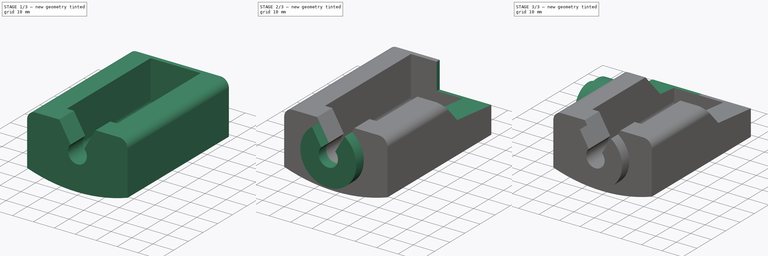
[diagram: build sequence overview — one tinted view per stage of 3, left to right]
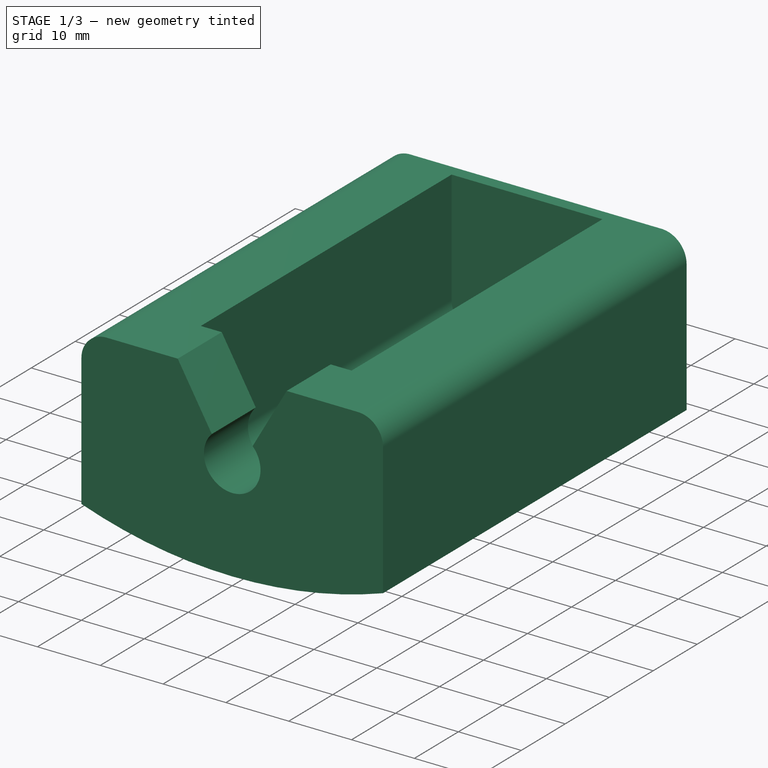
[diagram: stage 1 of 3 — iso view after this stage's code; geometry added in this stage tinted green]
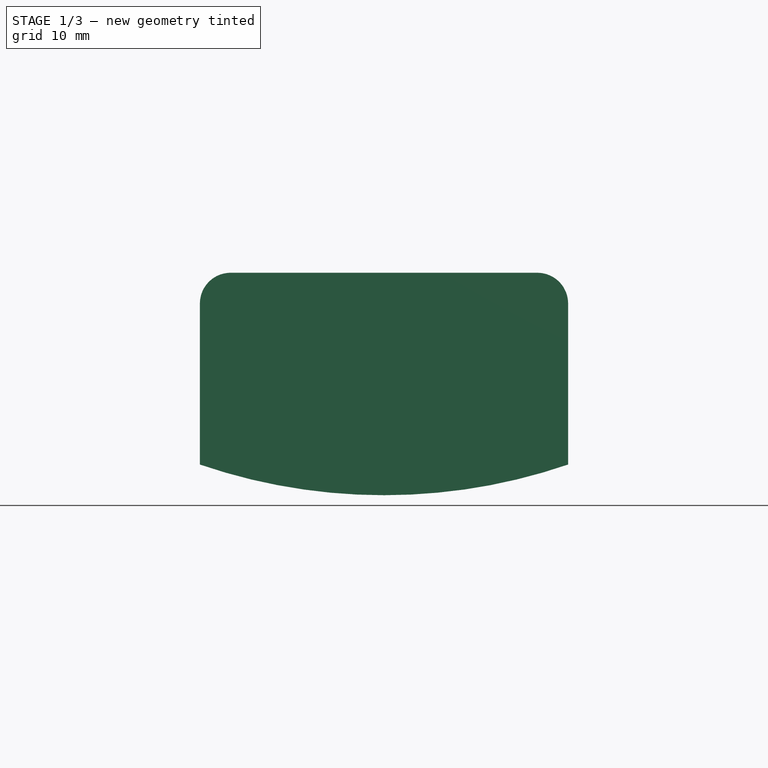
[diagram: stage 1 of 3 — front view after this stage's code; geometry added in this stage tinted green]
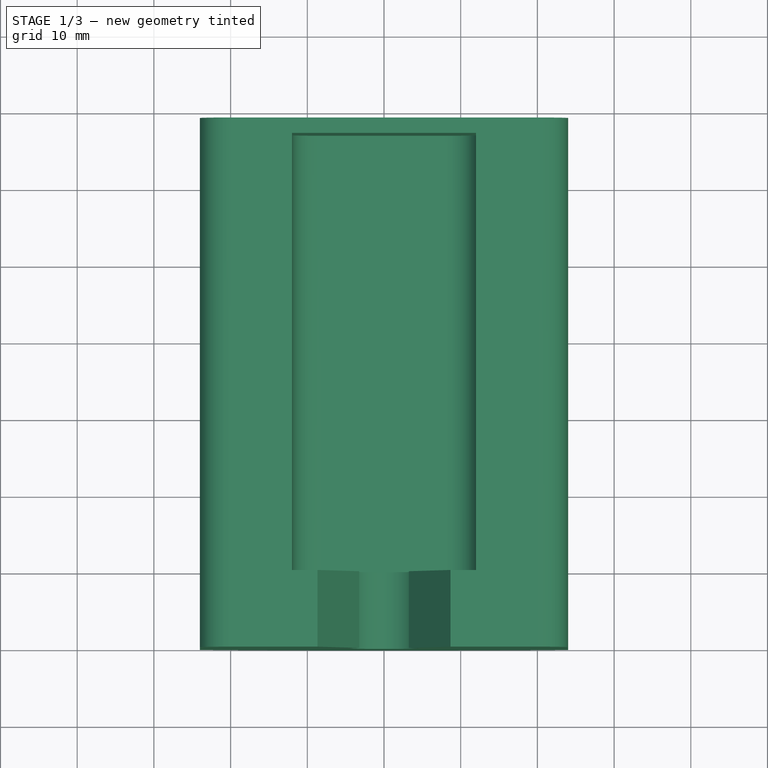
[diagram: stage 1 of 3 — top view after this stage's code; geometry added in this stage tinted green]
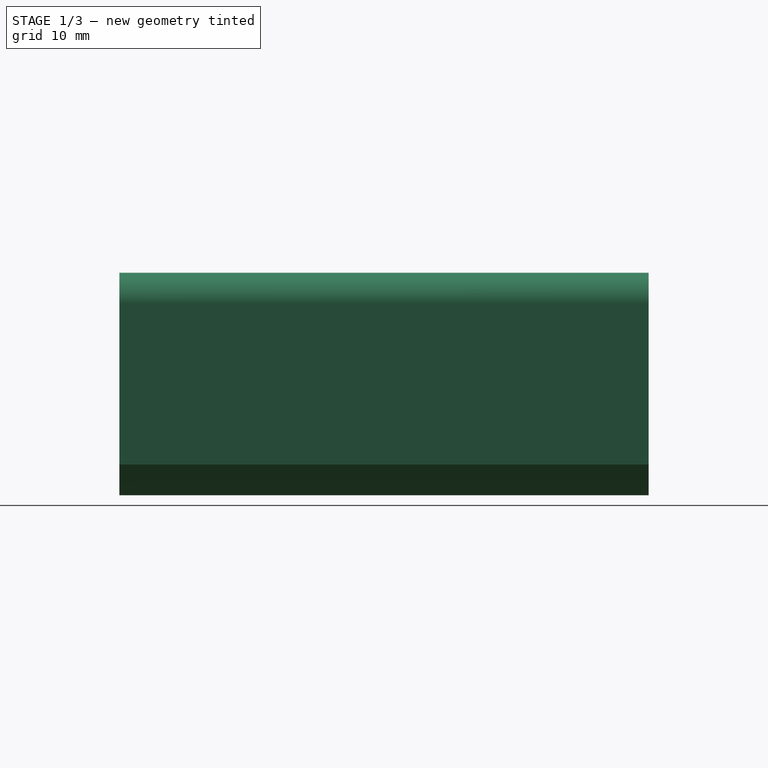
[diagram: stage 1 of 3 — right view after this stage's code; geometry added in this stage tinted green]
FCSTD DOCUMENT  (FreeCAD 0.20R28730 (Git))
Label: Tool Holder
License: All rights reserved
LicenseURL: http://en.wikipedia.org/wiki/All_rights_reserved
objects: Sketcher::SketchObject×8, PartDesign::Pad×4, PartDesign::Pocket×4, PartDesign::CoordinateSystem×1, PartDesign::Body×1
note: 26 computed .brp shape members not serialized (recipe doc carries the construction recipe); baked Part::Feature solids carry a one-line shape summary decoded from their .brp

FEATURE [Sketcher::SketchObject] Sketch
  FullyConstrained = true
  MapMode = 5
  Placement = pos=(0,0,0) rot=(1,0,0;1.5708rad)
  Support = -> [XZ_Plane]
  sketch-geometry (11):
    g0: LineSegment StartX=-24 StartY=-12.5 StartZ=0 EndX=-24 EndY=8.5 EndZ=0
    g1: LineSegment StartX=-20 StartY=12.5 StartZ=0 EndX=20 EndY=12.5 EndZ=0
    g2: LineSegment StartX=24 StartY=8.5 StartZ=0 EndX=24 EndY=-12.5 EndZ=0
    g3: LineSegment StartX=24 StartY=-12.5 StartZ=0 EndX=-24 EndY=-12.5 EndZ=0
    g4: GeomPoint X=0 Y=0 Z=0
    g5: ArcOfCircle CenterX=1.57e-14 CenterY=57.5 CenterZ=0 NormalX=0 NormalY=0 NormalZ=1 AngleXU=0 Radius=74 StartAngle=4.38209 EndAngle=5.04269
    g6: GeomPoint X=0 Y=-16.5 Z=0
    g7: ArcOfCircle CenterX=-20 CenterY=8.5 CenterZ=0 NormalX=0 NormalY=0 NormalZ=1 AngleXU=0 Radius=4 StartAngle=1.5708 EndAngle=3.14159
    g8: GeomPoint X=-24 Y=12.5 Z=0
    g9: ArcOfCircle CenterX=20 CenterY=8.5 CenterZ=0 NormalX=0 NormalY=0 NormalZ=1 AngleXU=0 Radius=4 StartAngle=0 EndAngle=1.5708
    g10: GeomPoint X=24 Y=12.5 Z=0
  constraints (25):
    c: Coincident(g2,g3)
    c: Coincident(g3,g0)
    c: Horizontal(g1)
    c: Horizontal(g3)
    c: Vertical(g0)
    c: Vertical(g2)
    c: Symmetric(g10,g0,g4)
    c: Coincident(g4,g-1)
    c: Coincident(g5,g0)
    c: Coincident(g5,g2)
    c: DistanceX(g8,g10) = 48
    c: Distance(g0,g8) = 25
    c: PointOnObject(g6,g5)
    c: Vertical(g6,g-1)
    c: DistanceY(g6,g8) = 29
    c: PointOnObject(g8,g0)
    c: PointOnObject(g8,g1)
    c: Tangent(g0,g7) = 1.5708
    c: Tangent(g1,g7) = 1.5708
    c: PointOnObject(g10,g1)
    c: PointOnObject(g10,g2)
    c: Tangent(g1,g9) = 1.5708
    c: Tangent(g2,g9) = 1.5708
    c: Radius(g9) = 4
    c: Equal(g9,g7)
FEATURE [PartDesign::Pad] Pad
  Direction = (0,-1,-2e-16)
  Length = 69
  Length2 = 100
  Placement = pos=(0,0,0) rot=(1,0,0;1.5708rad)
  Profile = -> Sketch
  ReferenceAxis = -> Sketch [N_Axis]
  Reversed = true
  Type = 0
FEATURE [Sketcher::SketchObject] Sketch001
  AttachmentOffset = pos=(0,0,-10) rot=(0,0,1;0rad)
  ExternalGeometry = -> [Pad]
  FullyConstrained = true
  MapMode = 5
  Placement = pos=(0,10,2.2e-15) rot=(1,0,0;1.5708rad)
  Support = -> [XZ_Plane]
  sketch-geometry (9):
    g0: LineSegment StartX=-12 StartY=-5.5 StartZ=0 EndX=-12 EndY=12.5 EndZ=0
    g1: LineSegment StartX=-12 StartY=12.5 StartZ=0 EndX=12 EndY=12.5 EndZ=0
    g2: LineSegment StartX=12 StartY=12.5 StartZ=0 EndX=12 EndY=-5.5 EndZ=0
    g3: LineSegment StartX=8 StartY=-9.5 StartZ=0 EndX=-8 EndY=-9.5 EndZ=0
    g4: GeomPoint X=0 Y=1.5 Z=0
    g5: ArcOfCircle CenterX=-8 CenterY=-5.5 CenterZ=0 NormalX=0 NormalY=0 NormalZ=1 AngleXU=0 Radius=4 StartAngle=3.14159 EndAngle=4.71239
    g6: GeomPoint X=-12 Y=-9.5 Z=0
    g7: ArcOfCircle CenterX=8 CenterY=-5.5 CenterZ=0 NormalX=0 NormalY=0 NormalZ=1 AngleXU=0 Radius=4 StartAngle=4.71239 EndAngle=6.28319
    g8: GeomPoint X=12 Y=-9.5 Z=0
  constraints (21):
    c: Coincident(g0,g1)
    c: Coincident(g1,g2)
    c: Horizontal(g1)
    c: Horizontal(g3)
    c: Vertical(g0)
    c: Vertical(g2)
    c: Symmetric(g1,g6,g4)
    c: PointOnObject(g4,g-2)
    c: DistanceX(g-3,g0) = 12
    c: PointOnObject(g0,g-4)
    c: DistanceY(g6,g0) = 22
    c: PointOnObject(g6,g0)
    c: PointOnObject(g6,g3)
    c: Tangent(g0,g5) = 1.5708
    c: Tangent(g3,g5) = 1.5708
    c: PointOnObject(g8,g2)
    c: PointOnObject(g8,g3)
    c: Tangent(g2,g7) = 1.5708
    c: Tangent(g3,g7) = 1.5708
    c: Equal(g7,g5)
    c: Radius(g5) = 4
FEATURE [PartDesign::Pocket] Pocket
  BaseFeature = -> Pad
  Direction = (0,1,2e-16)
  Length = 57
  Length2 = 100
  Placement = pos=(0,0,0) rot=(1,0,0;1.5708rad)
  Profile = -> Sketch001
  Type = 0
FEATURE [Sketcher::SketchObject] Sketch002
  ExternalGeometry = -> [Pocket]
  FullyConstrained = true
  MapMode = 5
  Placement = pos=(0,0,0) rot=(1,0,0;1.5708rad)
  Support = -> [XZ_Plane]
  sketch-geometry (4):
    g0: ArcOfCircle CenterX=0 CenterY=0 CenterZ=0 NormalX=0 NormalY=0 NormalZ=1 AngleXU=0 Radius=4.5 StartAngle=2.37781 EndAngle=7.04697
    g1: LineSegment StartX=-3.25 StartY=3.11247 StartZ=0 EndX=-8.66989 EndY=12.5 EndZ=0
    g2: LineSegment StartX=-8.66989 StartY=12.5 StartZ=0 EndX=8.66989 EndY=12.5 EndZ=0
    g3: LineSegment StartX=8.66989 StartY=12.5 StartZ=0 EndX=3.25 EndY=3.11247 EndZ=0
  constraints (12):
    c: Coincident(g0,g-1)
    c: Coincident(g0,g1)
    c: Coincident(g1,g2)
    c: Horizontal(g2)
    c: Coincident(g2,g3)
    c: Coincident(g3,g0)
    c: Equal(g3,g1)
    c: Horizontal(g0,g0)
    c: PointOnObject(g1,g-3)
    c: Radius(g0) = 4.5
    c: DistanceX(g0,g0) = 6.5
    c: Angle(g3,g1) = 1.0472
FEATURE [PartDesign::Pocket] Pocket001
  BaseFeature = -> Pocket
  Direction = (0,1,2e-16)
  Length = 10
  Length2 = 100
  Placement = pos=(0,0,0) rot=(1,0,0;1.5708rad)
  Profile = -> Sketch002
  Type = 0
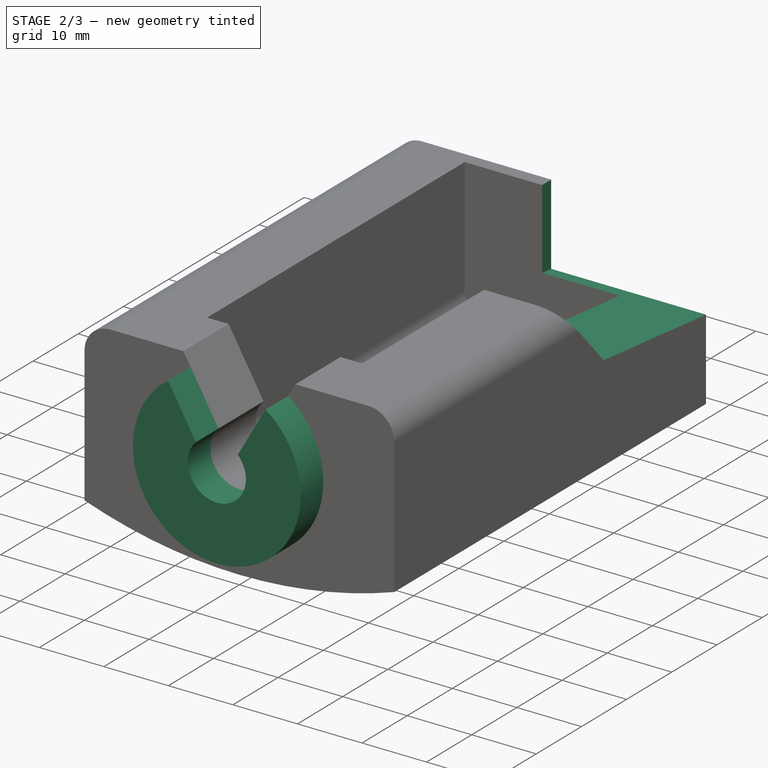
[diagram: stage 2 of 3 — iso view after this stage's code; geometry added in this stage tinted green]
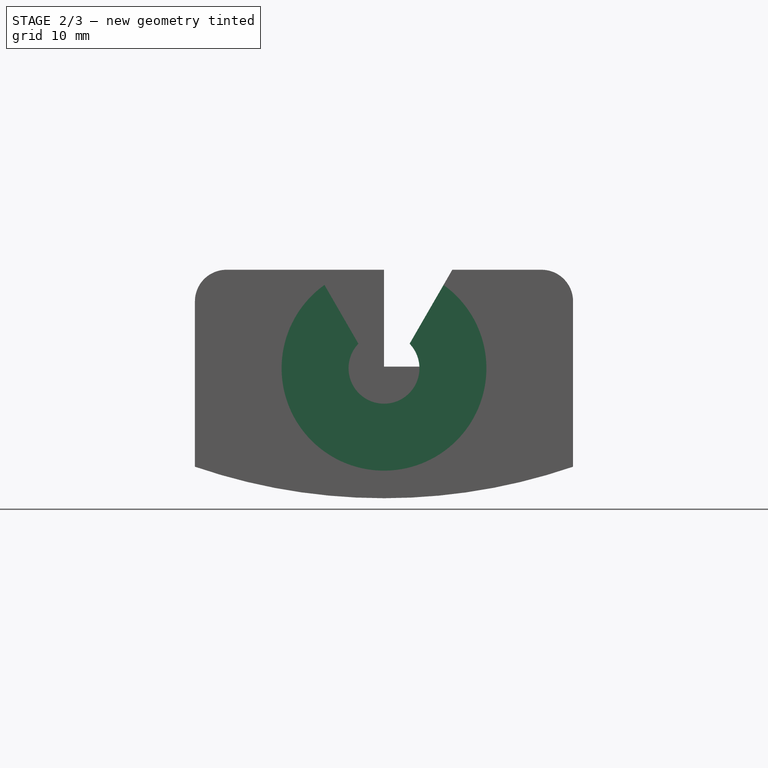
[diagram: stage 2 of 3 — front view after this stage's code; geometry added in this stage tinted green]
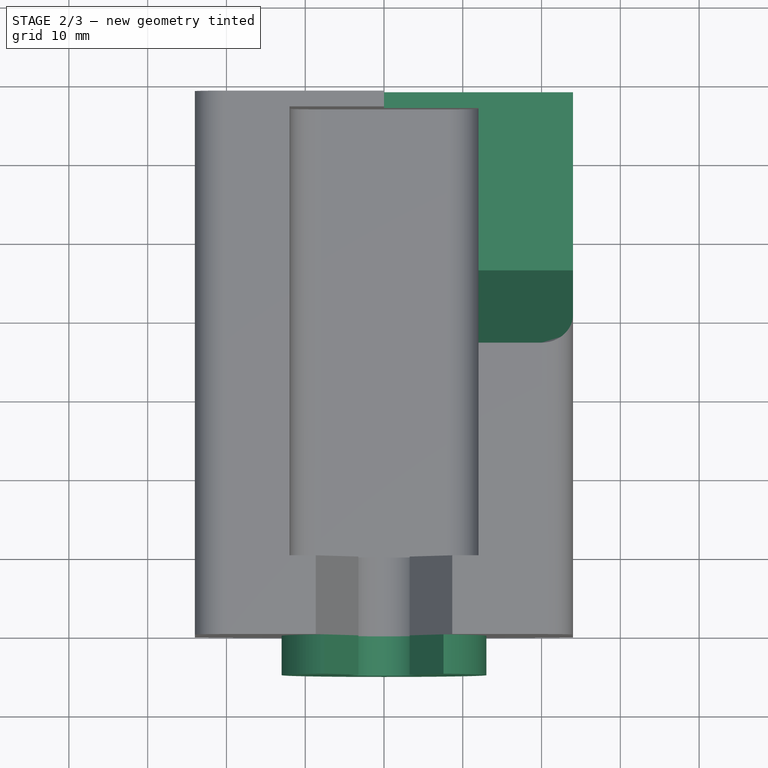
[diagram: stage 2 of 3 — top view after this stage's code; geometry added in this stage tinted green]
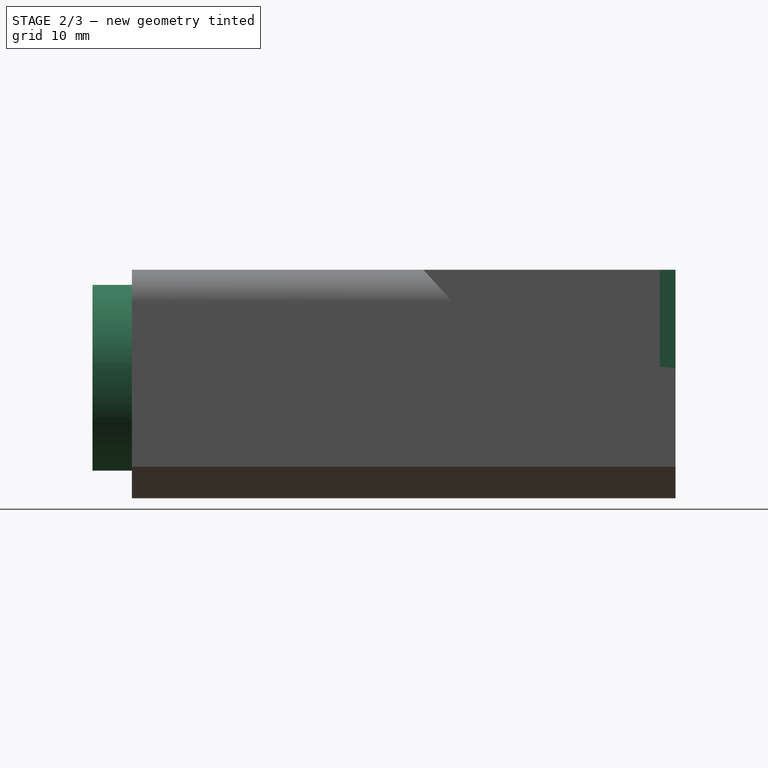
[diagram: stage 2 of 3 — right view after this stage's code; geometry added in this stage tinted green]
FEATURE [Sketcher::SketchObject] Sketch003
  ExternalGeometry = -> [Pocket001]
  FullyConstrained = true
  MapMode = 5
  Placement = pos=(0,0,0) rot=(1,0,0;1.5708rad)
  Support = -> [XZ_Plane]
  sketch-geometry (4):
    g0: ArcOfCircle CenterX=0 CenterY=0 CenterZ=0 NormalX=0 NormalY=0 NormalZ=1 AngleXU=0 Radius=4.5 StartAngle=2.37781 EndAngle=7.04697
    g1: ArcOfCircle CenterX=0 CenterY=0 CenterZ=0 NormalX=0 NormalY=0 NormalZ=1 AngleXU=0 Radius=13 StartAngle=2.19134 EndAngle=7.23344
    g2: LineSegment StartX=-7.55924 StartY=10.5763 StartZ=0 EndX=-3.25 EndY=3.11247 EndZ=0
    g3: LineSegment StartX=7.55924 StartY=10.5763 StartZ=0 EndX=3.25 EndY=3.11247 EndZ=0
  constraints (11):
    c: Coincident(g0,g-1)
    c: Coincident(g0,g-4)
    c: Coincident(g1,g0)
    c: PointOnObject(g1,g-3)
    c: Horizontal(g1,g1)
    c: Radius(g1) = 13
    c: Coincident(g2,g1)
    c: Coincident(g2,g0)
    c: Horizontal(g0,g0)
    c: Coincident(g3,g1)
    c: Coincident(g3,g0)
FEATURE [PartDesign::Pad] Pad001
  BaseFeature = -> Pocket001
  Direction = (0,-1,-2e-16)
  Length = 5
  Length2 = 100
  Placement = pos=(0,0,0) rot=(1,0,0;1.5708rad)
  Profile = -> Sketch003
  ReferenceAxis = -> Sketch003 [N_Axis]
  Type = 0
FEATURE [Sketcher::SketchObject] Sketch004
  ExternalGeometry = -> [Pad001]
  FullyConstrained = false
  MapMode = 5
  Placement = pos=(0,0,0) rot=(0.57735,0.57735,0.57735;2.0944rad)
  Support = -> [YZ_Plane]
  sketch-geometry (4):
    g0: LineSegment StartX=69 StartY=12.5 StartZ=0 EndX=69 EndY=0 EndZ=0
    g1: LineSegment StartX=69 StartY=0 StartZ=0 EndX=46.357 EndY=2.26935 EndZ=0
    g2: LineSegment StartX=46.357 StartY=2.26935 StartZ=0 EndX=37 EndY=12.5 EndZ=0
    g3: LineSegment StartX=37 StartY=12.5 StartZ=0 EndX=69 EndY=12.5 EndZ=0
  constraints (10):
    c: PointOnObject(g0,g-3)
    c: Vertical(g0)
    c: Coincident(g0,g1)
    c: Coincident(g1,g2)
    c: Coincident(g2,g3)
    c: Coincident(g3,g0)
    c: Horizontal(g3)
    c: PointOnObject(g2,g-4)
    c: DistanceX(g3,g3) = 32
    c: PointOnObject(g0,g-1)
FEATURE [PartDesign::Pocket] Pocket002
  BaseFeature = -> Pad001
  Direction = (-1,2e-16,-3e-16)
  Length = 5
  Length2 = 100
  Placement = pos=(0,0,0) rot=(1,0,0;1.5708rad)
  Profile = -> Sketch004
  Reversed = true
  Type = 1
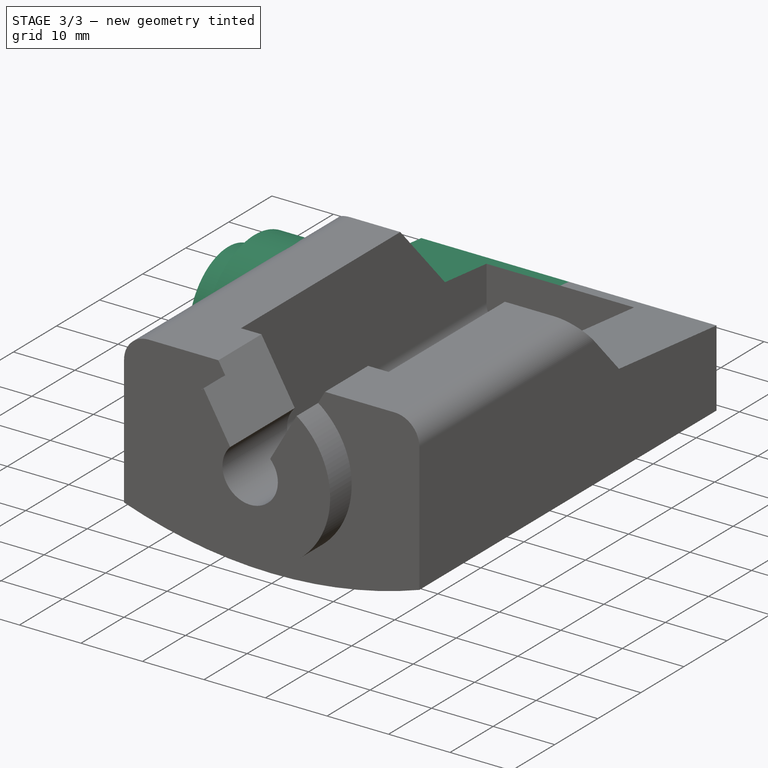
[diagram: stage 3 of 3 — iso view after this stage's code; geometry added in this stage tinted green]
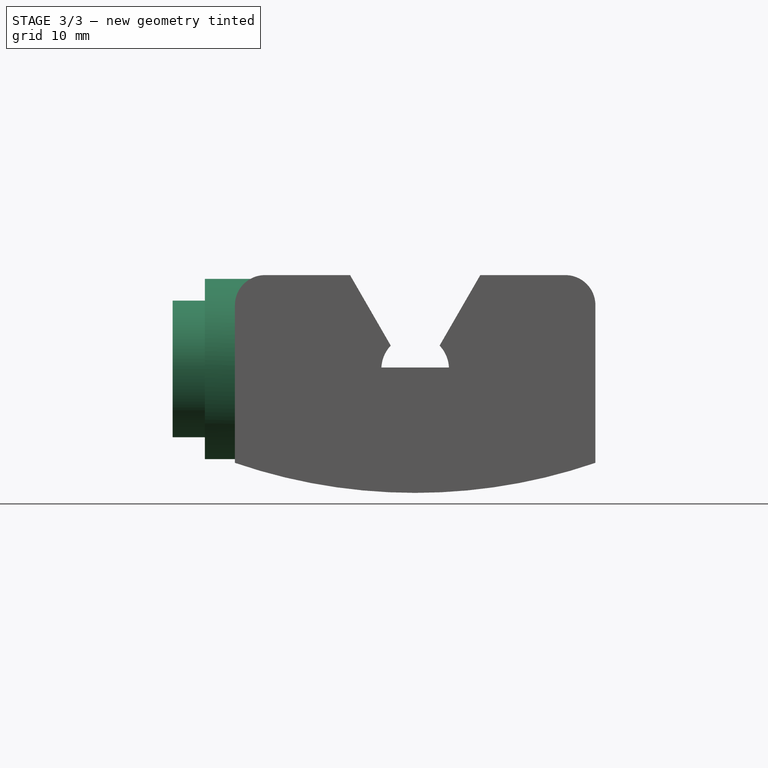
[diagram: stage 3 of 3 — front view after this stage's code; geometry added in this stage tinted green]
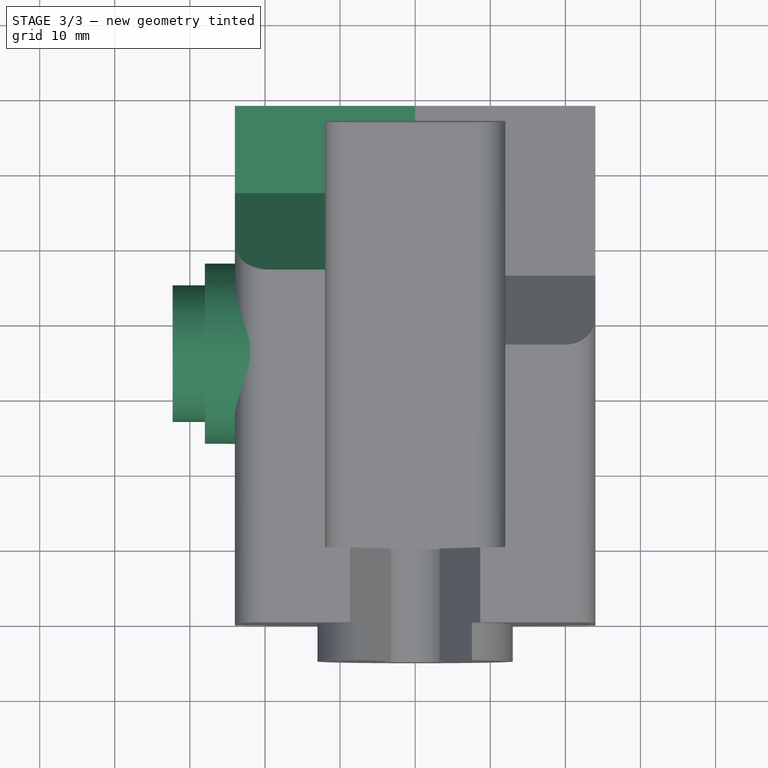
[diagram: stage 3 of 3 — top view after this stage's code; geometry added in this stage tinted green]
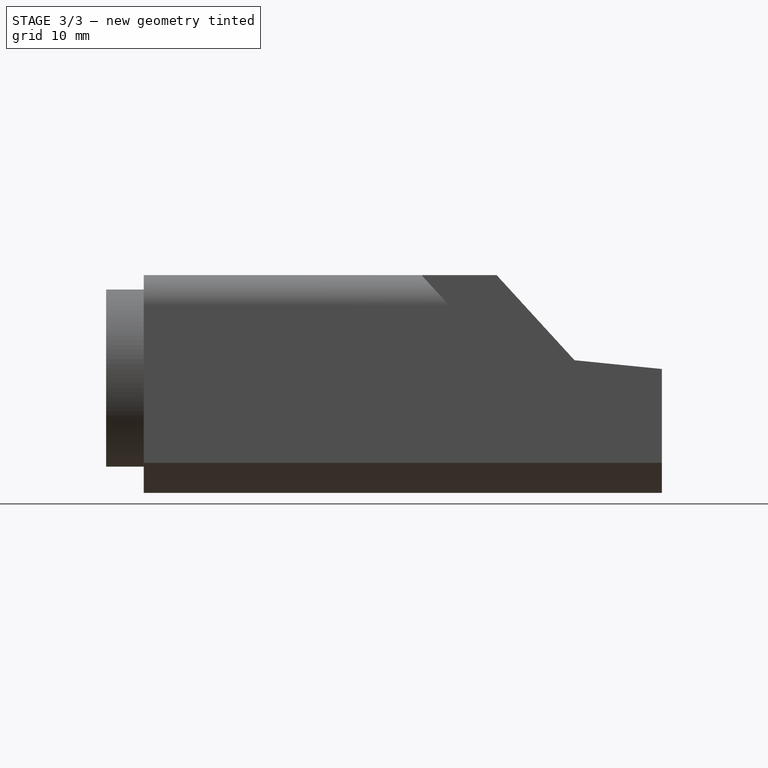
[diagram: stage 3 of 3 — right view after this stage's code; geometry added in this stage tinted green]
FEATURE [Sketcher::SketchObject] Sketch005
  ExternalGeometry = -> [Pocket002]
  FullyConstrained = true
  MapMode = 5
  Placement = pos=(0,0,0) rot=(0.57735,0.57735,0.57735;2.0944rad)
  Support = -> [YZ_Plane]
  sketch-geometry (4):
    g0: LineSegment StartX=47 StartY=12.5 StartZ=0 EndX=57.3661 EndY=1.16598 EndZ=0
    g1: LineSegment StartX=57.3661 StartY=1.16598 StartZ=0 EndX=69 EndY=2e-16 EndZ=0
    g2: LineSegment StartX=69 StartY=2e-16 StartZ=0 EndX=69 EndY=12.5 EndZ=0
    g3: LineSegment StartX=69 StartY=12.5 StartZ=0 EndX=47 EndY=12.5 EndZ=0
  constraints (11):
    c: Coincident(g0,g1)
    c: Coincident(g1,g2)
    c: Vertical(g2)
    c: Coincident(g2,g3)
    c: PointOnObject(g3,g-3)
    c: Horizontal(g3)
    c: PointOnObject(g0,g-4)
    c: Parallel(g-5,g0)
    c: DistanceX(g3,g3) = 22
    c: Coincident(g0,g3)
    c: Coincident(g1,g-4)
FEATURE [PartDesign::Pocket] Pocket003
  BaseFeature = -> Pocket002
  Direction = (-1,2e-16,-3e-16)
  Length = 5
  Length2 = 100
  Placement = pos=(0,0,0) rot=(1,0,0;1.5708rad)
  Profile = -> Sketch005
  Type = 1
FEATURE [Sketcher::SketchObject] Sketch006
  AttachmentOffset = pos=(0,0,-28) rot=(0,0,1;0rad)
  FullyConstrained = true
  MapMode = 5
  Placement = pos=(-28,6.2e-15,-6.2e-15) rot=(0.57735,0.57735,0.57735;2.0944rad)
  Support = -> [YZ_Plane]
  sketch-geometry (1):
    g0: Circle CenterX=36 CenterY=0 CenterZ=0 NormalX=0 NormalY=0 NormalZ=1 AngleXU=0 Radius=12
  constraints (3):
    c: PointOnObject(g0,g-1)
    c: Diameter(g0) = 24
    c: DistanceX(g-1,g0) = 36
FEATURE [PartDesign::Pad] Pad002
  BaseFeature = -> Pocket003
  Direction = (1,-2e-16,3e-16)
  Length = 10
  Length2 = 100
  Placement = pos=(0,0,0) rot=(1,0,0;1.5708rad)
  Profile = -> Sketch006
  ReferenceAxis = -> Sketch006 [N_Axis]
  Type = 0
FEATURE [Sketcher::SketchObject] Sketch007
  AttachmentOffset = pos=(0,0,-28) rot=(0,0,1;0rad)
  ExternalGeometry = -> [Pad002]
  FullyConstrained = true
  MapMode = 5
  Placement = pos=(-28,6.2e-15,-6.2e-15) rot=(0.57735,0.57735,0.57735;2.0944rad)
  Support = -> [YZ_Plane]
  sketch-geometry (1):
    g0: Circle CenterX=36 CenterY=-1.6e-14 CenterZ=0 NormalX=0 NormalY=0 NormalZ=1 AngleXU=0 Radius=9.1
  constraints (2):
    c: Coincident(g0,g-3)
    c: Diameter(g0) = 18.2
FEATURE [PartDesign::Pad] Pad003
  BaseFeature = -> Pad002
  Direction = (1,-2e-16,3e-16)
  Length = 4.3
  Length2 = 100
  Placement = pos=(0,0,0) rot=(1,0,0;1.5708rad)
  Profile = -> Sketch007
  ReferenceAxis = -> Sketch007 [N_Axis]
  Reversed = true
  Type = 0
FEATURE [PartDesign::CoordinateSystem] LCS_1  label="LCS_Tool_Holder"
  AttacherType = Attacher::AttachEngine3D
  AttachmentOffset = pos=(0,0,0) rot=(-0.57735,-0.57735,0.57735;2.0944rad)
  MapMode = 11
  Placement = pos=(-28,36,-6e-15) rot=(0,0,-1;1.5708rad)
  Support = -> [Pad003]
FEATURE [PartDesign::Body] Body  label="Tool_Holder"
  Group = -> [Sketch,Pad,Sketch001,Pocket,Sketch002,Pocket001,Sketch003,Pad001,Sketch004,Pocket002,Sketch005,Pocket003,Sketch006,Pad002,Sketch007,Pad003,LCS_1]
  Origin = -> Origin
  Tip = -> Pad003
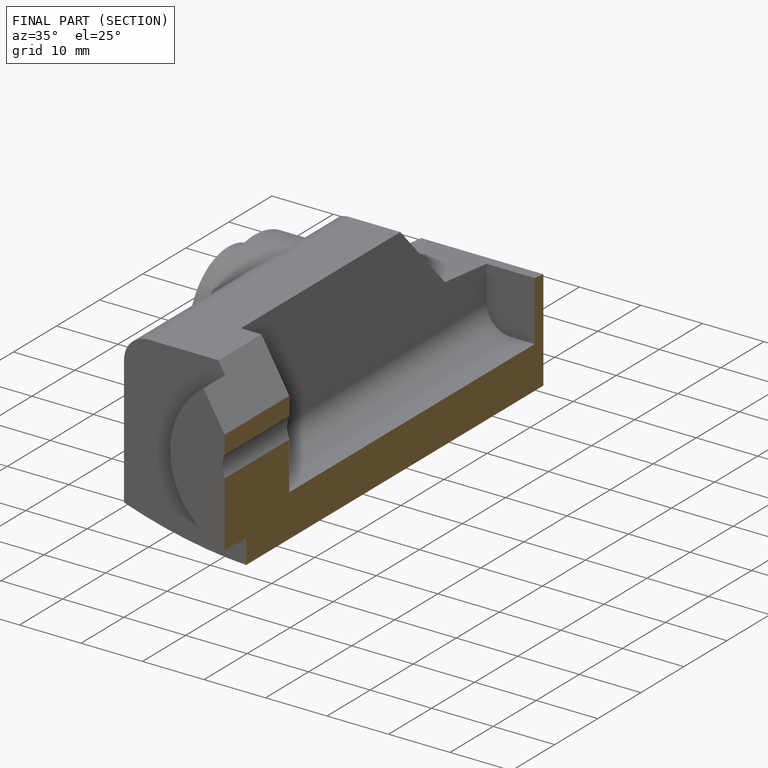
[diagram: finished part — half-section view (interior)]
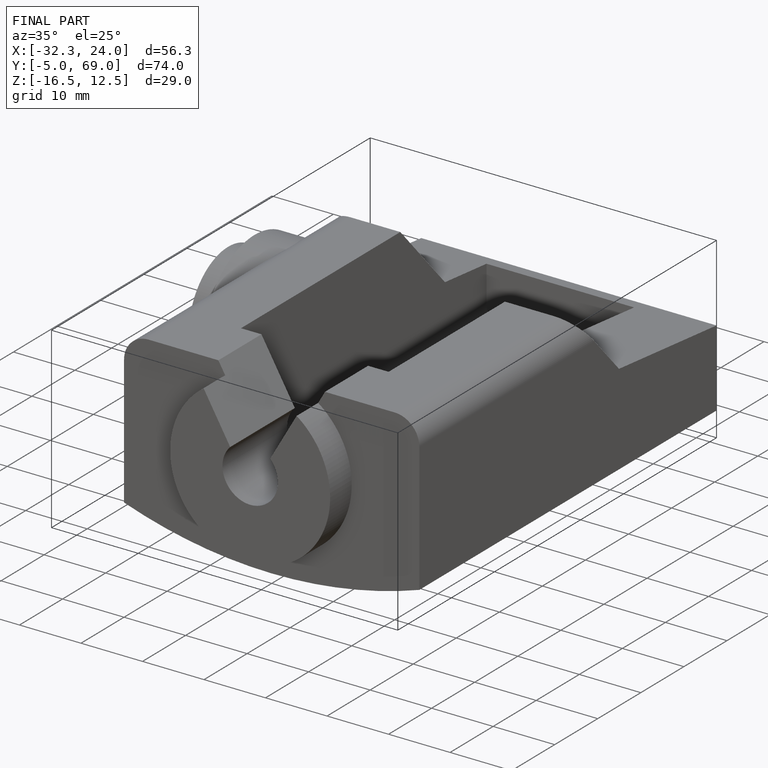
[diagram: finished part — iso view with bounding-box wireframe]
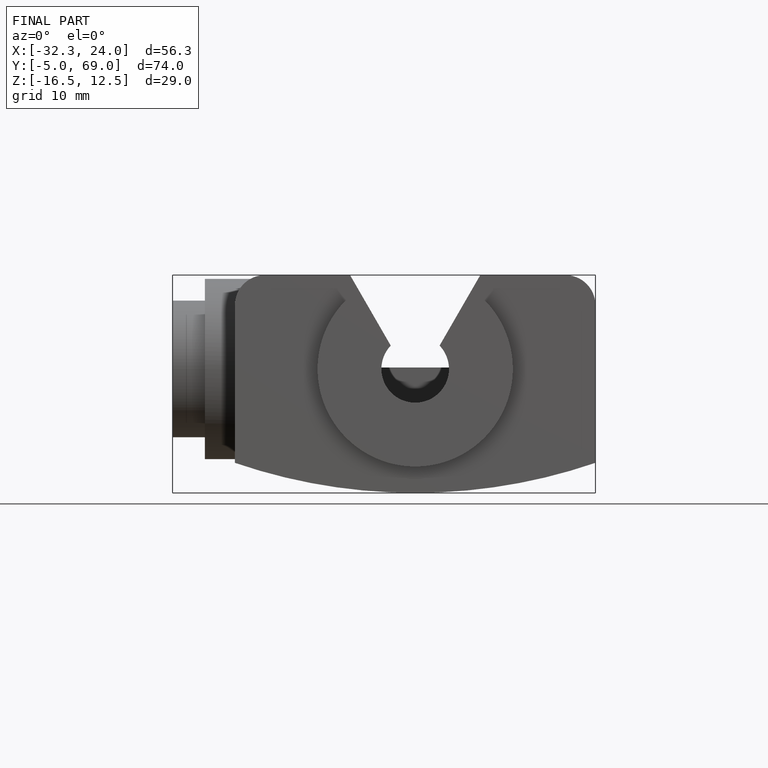
[diagram: finished part — front view with bounding-box wireframe]
